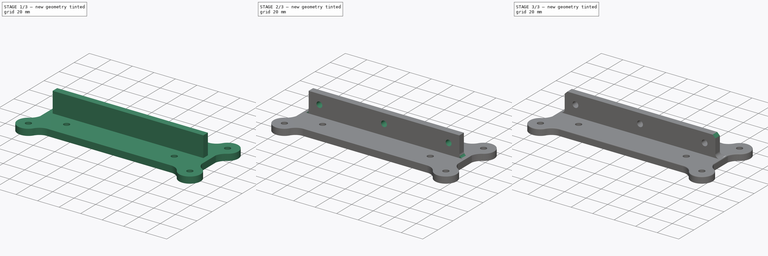
[diagram: build sequence overview — one tinted view per stage of 3, left to right]
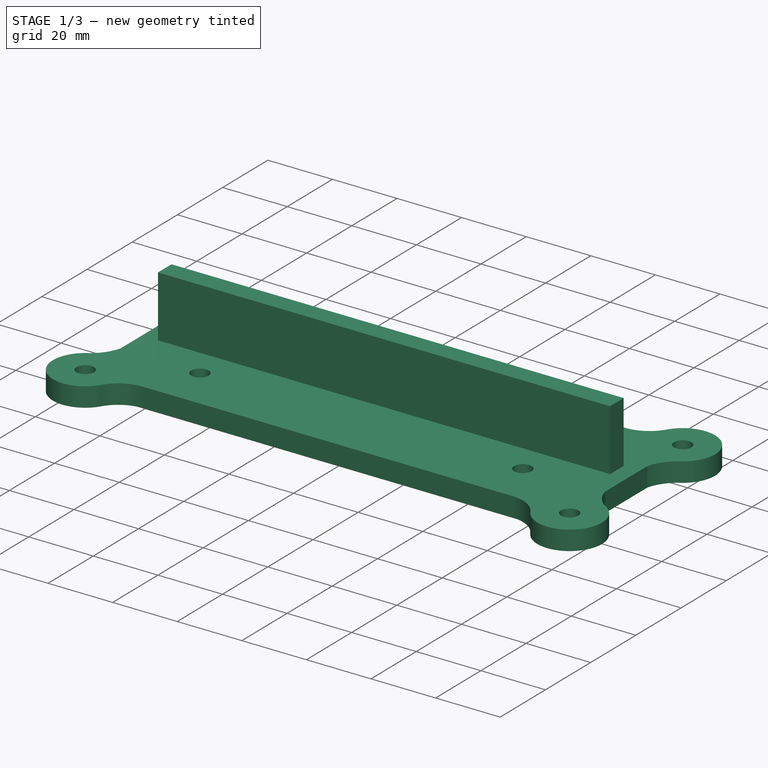
[diagram: stage 1 of 3 — iso view after this stage's code; geometry added in this stage tinted green]
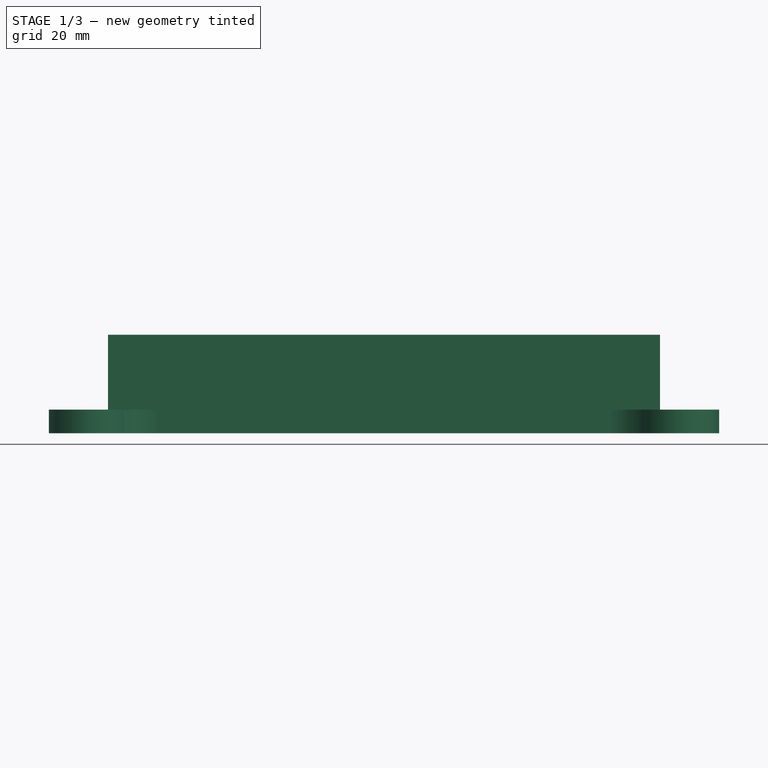
[diagram: stage 1 of 3 — front view after this stage's code; geometry added in this stage tinted green]
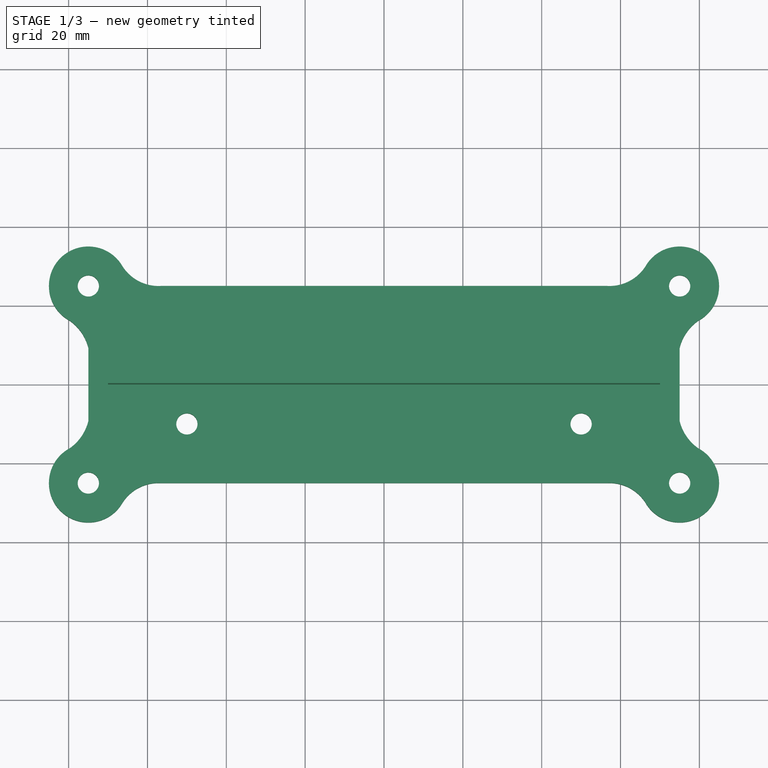
[diagram: stage 1 of 3 — top view after this stage's code; geometry added in this stage tinted green]
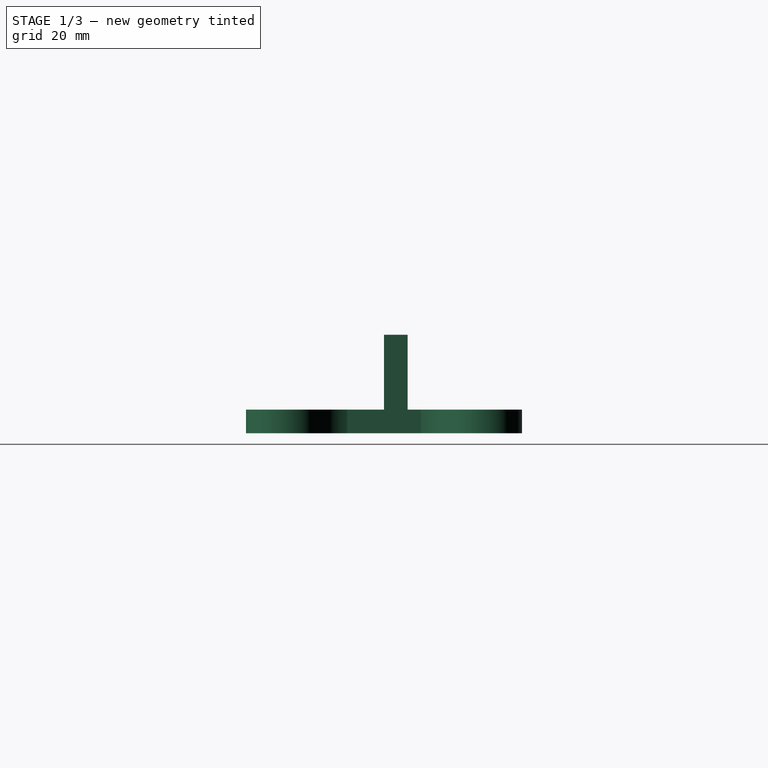
[diagram: stage 1 of 3 — right view after this stage's code; geometry added in this stage tinted green]
FCSTD DOCUMENT  (FreeCAD 0.16R6706 (Git))
Label: PSU_mount
License: All rights reserved
LicenseURL: http://en.wikipedia.org/wiki/All_rights_reserved
objects: Sketcher::SketchObject×4, Part::Fillet×3, PartDesign::Pad×2, PartDesign::Pocket×2, Part::Chamfer×1
note: 16 computed .brp shape members not serialized (recipe doc carries the construction recipe); baked Part::Feature solids carry a one-line shape summary decoded from their .brp

FEATURE [Sketcher::SketchObject] Sketch
  sketch-geometry (24):
    g0: Circle CenterX=-75 CenterY=25 CenterZ=0 NormalX=0 NormalY=0 NormalZ=1 Radius=2.7
    g1: ArcOfCircle CenterX=-75 CenterY=25 CenterZ=0 NormalX=0 NormalY=0 NormalZ=1 Radius=10 StartAngle=0.512949 EndAngle=4.22587
    g2: ArcOfCircle CenterX=-57.1845 CenterY=35.8475 CenterZ=0 NormalX=0 NormalY=0 NormalZ=1 Radius=10.8692 StartAngle=3.71977 EndAngle=4.77562
    g3: LineSegment StartX=-56.4977 StartY=25 StartZ=0 EndX=0 EndY=25 EndZ=0
    g4: ArcOfCircle CenterX=-86.6969 CenterY=6.34234 CenterZ=0 NormalX=0 NormalY=0 NormalZ=1 Radius=12.0703 StartAngle=0.2494 EndAngle=0.949976
    g5: LineSegment StartX=-75 StartY=9.32156 StartZ=0 EndX=-75 EndY=0 EndZ=0
    g6: Circle CenterX=-75 CenterY=-25 CenterZ=0 NormalX=0 NormalY=0 NormalZ=1 Radius=2.7
    g7: ArcOfCircle CenterX=-75 CenterY=-25 CenterZ=0 NormalX=0 NormalY=0 NormalZ=1 Radius=10 StartAngle=2.05732 EndAngle=5.77024
    g8: ArcOfCircle CenterX=-57.1845 CenterY=-35.8475 CenterZ=0 NormalX=0 NormalY=0 NormalZ=1 Radius=10.8692 StartAngle=1.50757 EndAngle=2.56342
    g9: LineSegment StartX=-56.4977 StartY=-25 StartZ=0 EndX=0 EndY=-25 EndZ=0
    g10: ArcOfCircle CenterX=-86.6969 CenterY=-6.34234 CenterZ=0 NormalX=0 NormalY=0 NormalZ=1 Radius=12.0703 StartAngle=5.33321 EndAngle=6.03379
    g11: LineSegment StartX=-75 StartY=-9.32156 StartZ=0 EndX=-75 EndY=0 EndZ=0
    g12: Circle CenterX=75 CenterY=25 CenterZ=0 NormalX=0 NormalY=0 NormalZ=1 Radius=2.7
    g13: ArcOfCircle CenterX=75 CenterY=25 CenterZ=0 NormalX=0 NormalY=0 NormalZ=1 Radius=10 StartAngle=5.19891 EndAngle=8.91183
    g14: ArcOfCircle CenterX=57.1845 CenterY=35.8475 CenterZ=0 NormalX=0 NormalY=0 NormalZ=1 Radius=10.8692 StartAngle=4.64916 EndAngle=5.70501
    g15: LineSegment StartX=56.4977 StartY=25 StartZ=0 EndX=0 EndY=25 EndZ=0
    g16: ArcOfCircle CenterX=86.6969 CenterY=6.34234 CenterZ=0 NormalX=0 NormalY=0 NormalZ=1 Radius=12.0703 StartAngle=2.19162 EndAngle=2.89219
    g17: LineSegment StartX=75 StartY=9.32156 StartZ=0 EndX=75 EndY=0 EndZ=0
    g18: Circle CenterX=75 CenterY=-25 CenterZ=0 NormalX=0 NormalY=0 NormalZ=1 Radius=2.7
    g19: ArcOfCircle CenterX=75 CenterY=-25 CenterZ=0 NormalX=0 NormalY=0 NormalZ=1 Radius=10 StartAngle=3.65454 EndAngle=7.36746
    g20: ArcOfCircle CenterX=57.1845 CenterY=-35.8475 CenterZ=0 NormalX=0 NormalY=0 NormalZ=1 Radius=10.8692 StartAngle=0.578175 EndAngle=1.63403
    g21: LineSegment StartX=56.4977 StartY=-25 StartZ=0 EndX=0 EndY=-25 EndZ=0
    g22: ArcOfCircle CenterX=86.6969 CenterY=-6.34234 CenterZ=0 NormalX=0 NormalY=0 NormalZ=1 Radius=12.0703 StartAngle=3.39099 EndAngle=4.09157
    g23: LineSegment StartX=75 StartY=-9.32156 StartZ=0 EndX=75 EndY=0 EndZ=0
  constraints (42):
    c: DistanceX(g0,g-1) = 75
    c: DistanceY(g-1,g0) = 25
    c: Radius(g0) = 2.7
    c: Coincident(g1,g0)
    c: Coincident(g2,g1)
    c: Coincident(g3,g2)
    c: PointOnObject(g3,g-2)
    c: Horizontal(g3)
    c: Coincident(g4,g1)
    c: Coincident(g5,g4)
    c: PointOnObject(g5,g-1)
    c: Vertical(g5)
    c: DistanceY(g-1,g3) = 25
    c: DistanceX(g5,g-1) = 75
    c: Radius(g1) = 10
    c: Radius(g6) = 2.7
    c: Coincident(g7,g6)
    c: Coincident(g8,g7)
    c: Coincident(g9,g8)
    c: Horizontal(g9)
    c: Coincident(g10,g7)
    c: Coincident(g11,g10)
    c: Vertical(g11)
    c: Radius(g7) = 10
    c: Radius(g12) = 2.7
    c: Coincident(g13,g12)
    c: Coincident(g14,g13)
    c: Coincident(g15,g14)
    c: Horizontal(g15)
    c: Coincident(g16,g13)
    c: Coincident(g17,g16)
    c: Vertical(g17)
    c: Radius(g13) = 10
    c: Radius(g18) = 2.7
    c: Coincident(g19,g18)
    c: Coincident(g20,g19)
    c: Coincident(g21,g20)
    c: Horizontal(g21)
    c: Coincident(g22,g19)
    c: Coincident(g23,g22)
    c: Vertical(g23)
    c: Radius(g19) = 10
FEATURE [PartDesign::Pad] Pad
  Length = 6
  Length2 = 100
  Sketch = -> Sketch
  Type = 0
FEATURE [Sketcher::SketchObject] Sketch001
  ExternalGeometry = -> [Pad]
  Placement = pos=(0,0,6) rot=(0,0,1;0rad)
  Support = -> Pad [Face26]
  sketch-geometry (2):
    g0: Circle CenterX=-50 CenterY=-10 CenterZ=0 NormalX=0 NormalY=0 NormalZ=1 Radius=2.7
    g1: Circle CenterX=50 CenterY=-10 CenterZ=0 NormalX=0 NormalY=0 NormalZ=1 Radius=2.7
  constraints (5):
    c: DistanceY(g-3,g0) = 15
    c: DistanceX(g0,g-1) = 50
    c: Radius(g0) = 2.7
    c: Symmetric(g0,g1,g-2)
    c: Equal(g0,g1)
FEATURE [PartDesign::Pocket] Pocket
  Length = 6
  Sketch = -> Sketch001
  Type = 1
FEATURE [Sketcher::SketchObject] Sketch002
  ExternalGeometry = -> [Pocket]
  Placement = pos=(0,0,6) rot=(0,0,1;0rad)
  Support = -> Pocket [Face5]
  sketch-geometry (4):
    g0: LineSegment StartX=-70 StartY=6 StartZ=0 EndX=70 EndY=6 EndZ=0
    g1: LineSegment StartX=70 StartY=6 StartZ=0 EndX=70 EndY=0 EndZ=0
    g2: LineSegment StartX=70 StartY=0 StartZ=0 EndX=-70 EndY=0 EndZ=0
    g3: LineSegment StartX=-70 StartY=0 StartZ=0 EndX=-70 EndY=6 EndZ=0
  constraints (12):
    c: Coincident(g0,g1)
    c: Coincident(g1,g2)
    c: Coincident(g2,g3)
    c: Coincident(g3,g0)
    c: Horizontal(g0)
    c: Horizontal(g2)
    c: Vertical(g1)
    c: Vertical(g3)
    c: Symmetric(g0,g0,g-2)
    c: DistanceX(g0,g0) = 140
    c: DistanceY(g1,g1) = 6
    c: DistanceY(g-3,g1) = 25
FEATURE [PartDesign::Pad] Pad001
  Length = 19
  Length2 = 100
  Sketch = -> Sketch002
  Type = 0
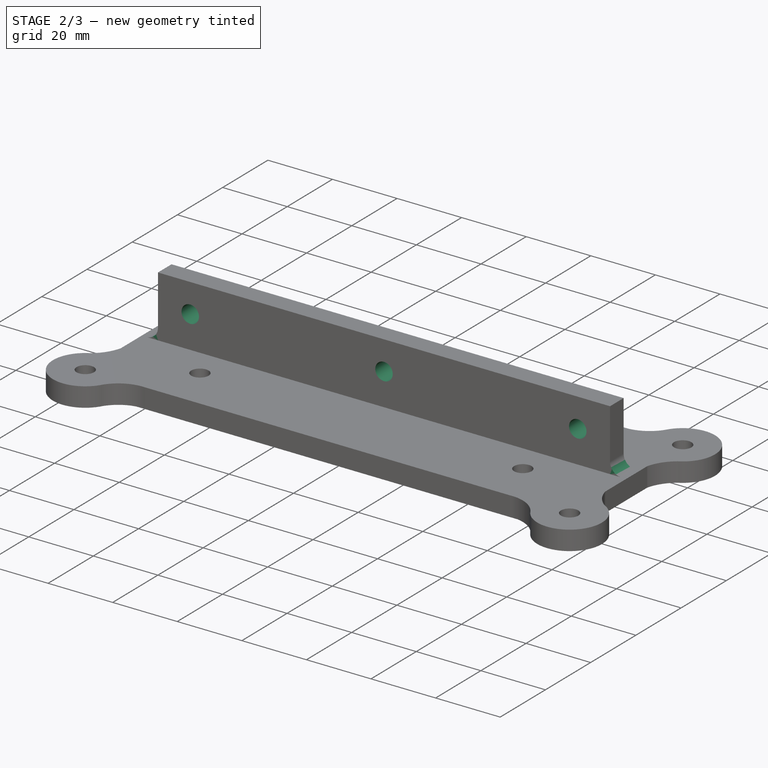
[diagram: stage 2 of 3 — iso view after this stage's code; geometry added in this stage tinted green]
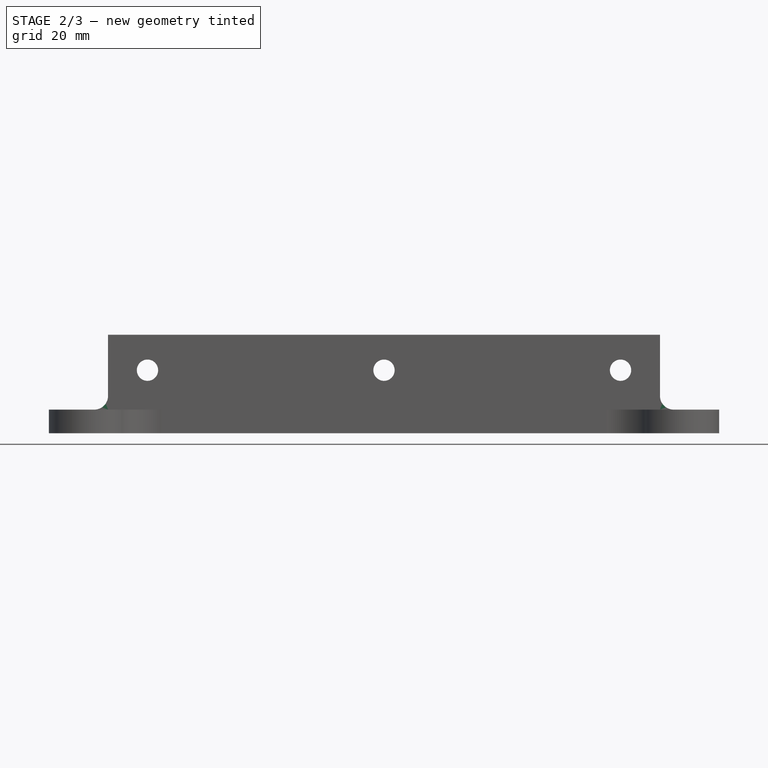
[diagram: stage 2 of 3 — front view after this stage's code; geometry added in this stage tinted green]
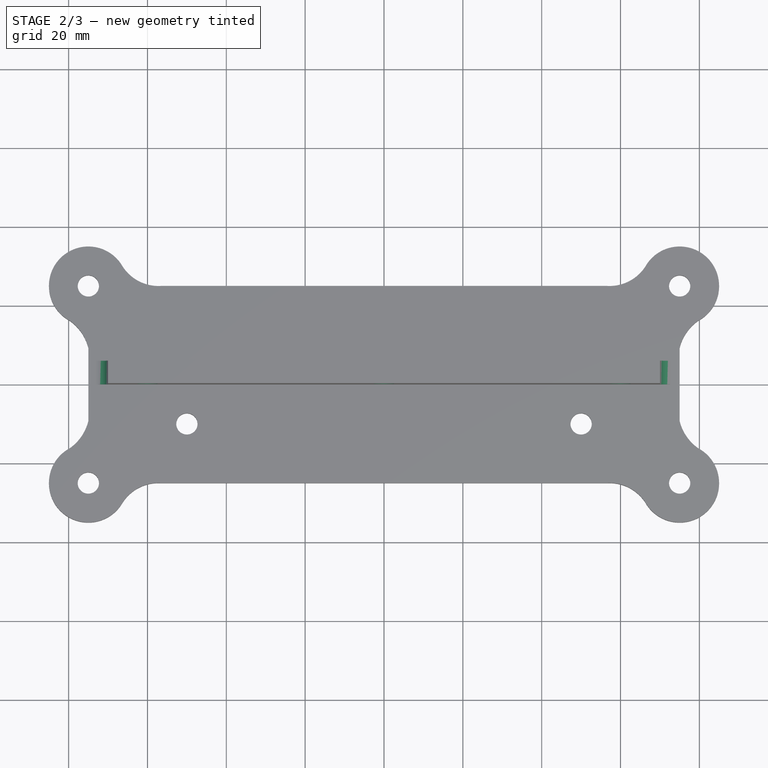
[diagram: stage 2 of 3 — top view after this stage's code; geometry added in this stage tinted green]
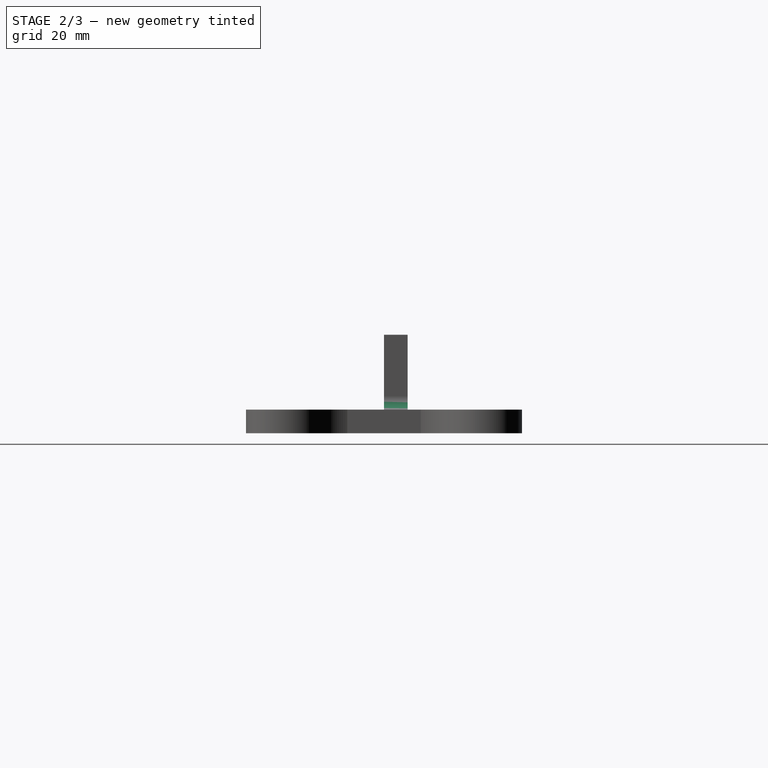
[diagram: stage 2 of 3 — right view after this stage's code; geometry added in this stage tinted green]
FEATURE [Sketcher::SketchObject] Sketch003
  ExternalGeometry = -> [Pad001]
  Placement = pos=(0,0,0) rot=(1,0,0;1.5708rad)
  Support = -> Pad001 [Face30]
  sketch-geometry (3):
    g0: Circle CenterX=-60 CenterY=16 CenterZ=0 NormalX=0 NormalY=0 NormalZ=1 Radius=2.7
    g1: Circle CenterX=0 CenterY=16 CenterZ=0 NormalX=0 NormalY=0 NormalZ=1 Radius=2.7
    g2: Circle CenterX=60 CenterY=16 CenterZ=0 NormalX=0 NormalY=0 NormalZ=1 Radius=2.7
  constraints (8):
    c: Radius(g0) = 2.7
    c: PointOnObject(g1,g-2)
    c: DistanceY(g-3,g0) = 10
    c: Equal(g0,g2)
    c: Symmetric(g0,g2,g-2)
    c: Equal(g0,g1)
    c: DistanceX(g0,g-1) = 60
    c: DistanceY(g-3,g1) = 10
FEATURE [PartDesign::Pocket] Pocket001
  Length = 5
  Sketch = -> Sketch003
  Type = 1
FEATURE [Part::Fillet] Fillet
  Base = -> Pocket001
  Edges = 2 edges r=3.5: [Edge51,Edge53]
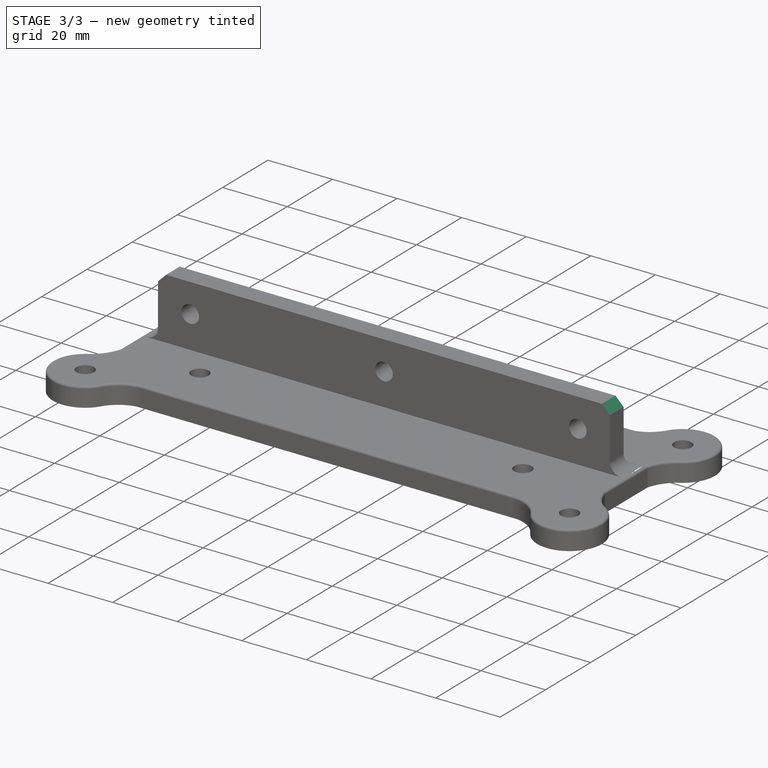
[diagram: stage 3 of 3 — iso view after this stage's code; geometry added in this stage tinted green]
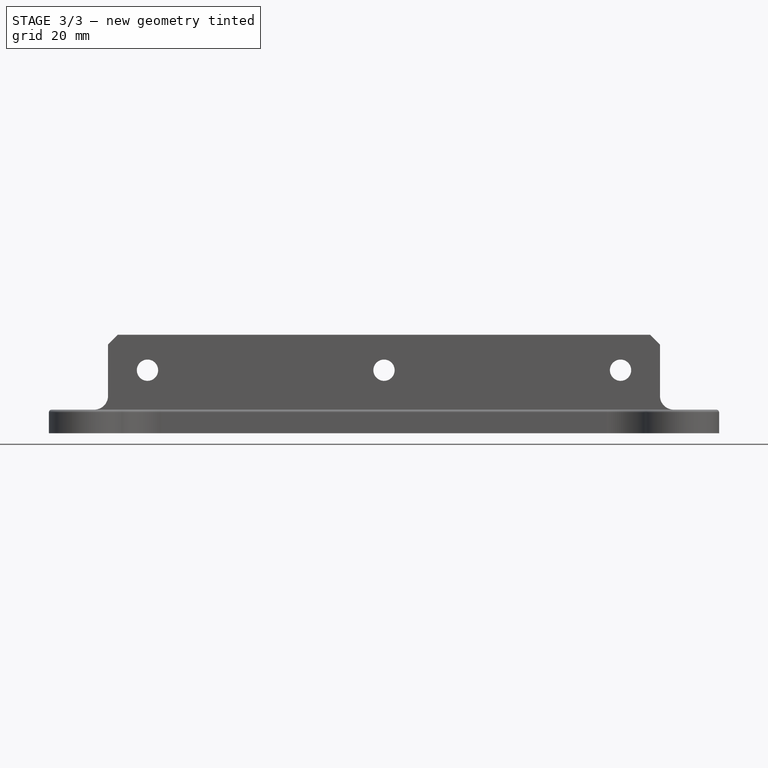
[diagram: stage 3 of 3 — front view after this stage's code; geometry added in this stage tinted green]
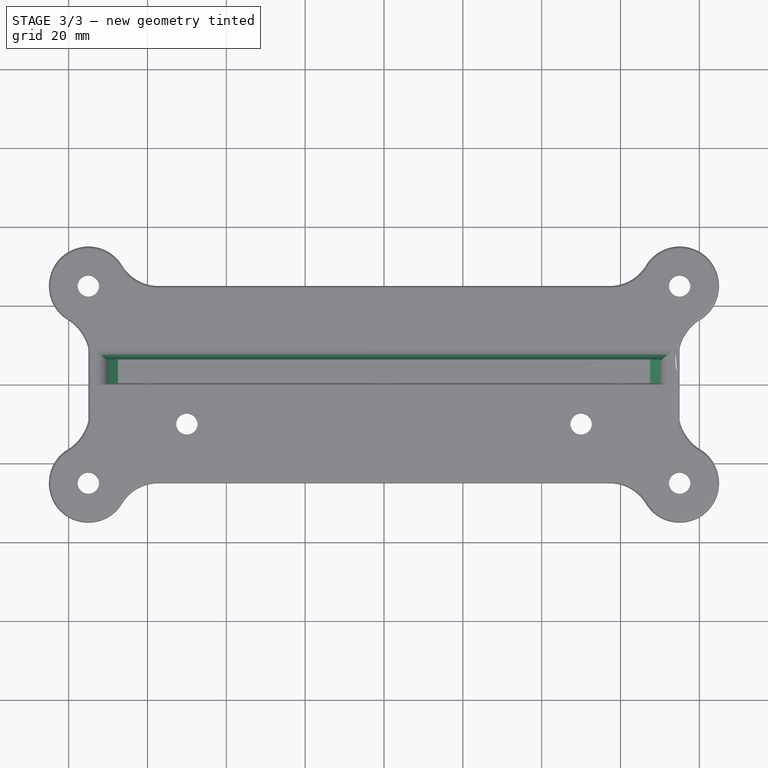
[diagram: stage 3 of 3 — top view after this stage's code; geometry added in this stage tinted green]
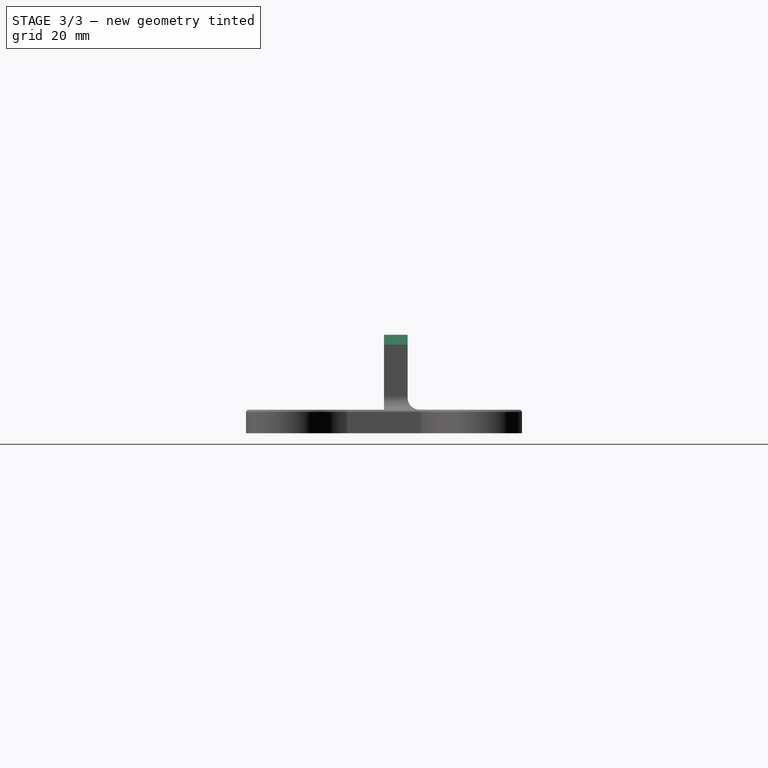
[diagram: stage 3 of 3 — right view after this stage's code; geometry added in this stage tinted green]
FEATURE [Part::Chamfer] Chamfer
  Base = -> Fillet
  Edges = 2 edges r=2.5: [Edge105,Edge106]
FEATURE [Part::Fillet] Fillet001
  Base = -> Chamfer
  Edges = 20 edges r=0.7: [Edge27,Edge28,Edge29,Edge30,Edge31,Edge32,Edge33,Edge34,Edge35,Edge36,Edge37,Edge38,Edge39,Edge40,Edge41,Edge42,Edge43,Edge44,Edge45,Edge46]
FEATURE [Part::Fillet] Fillet002
  Base = -> Fillet001
  Edges = 1 edges r=3: [Edge31]
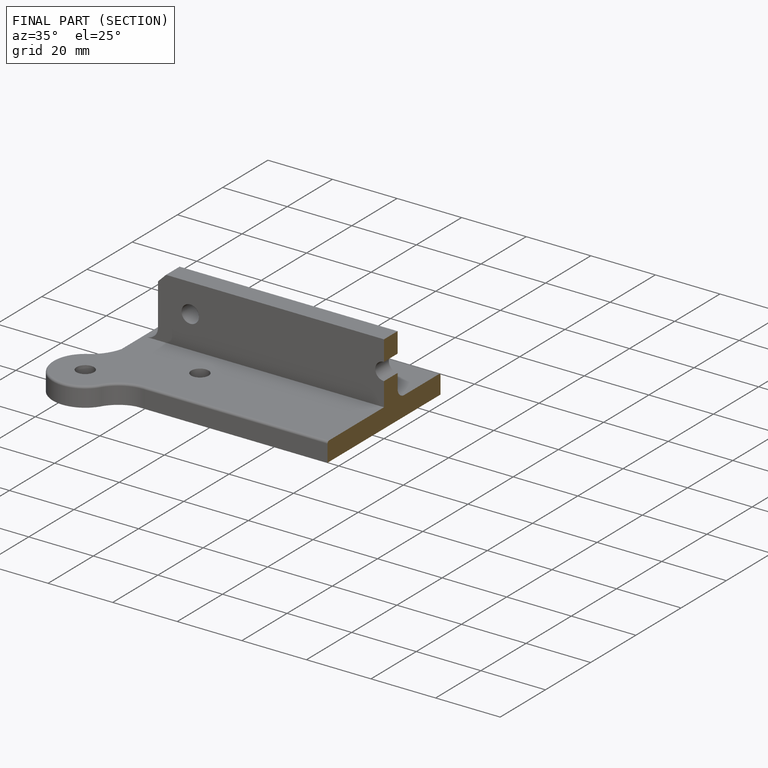
[diagram: finished part — half-section view (interior)]
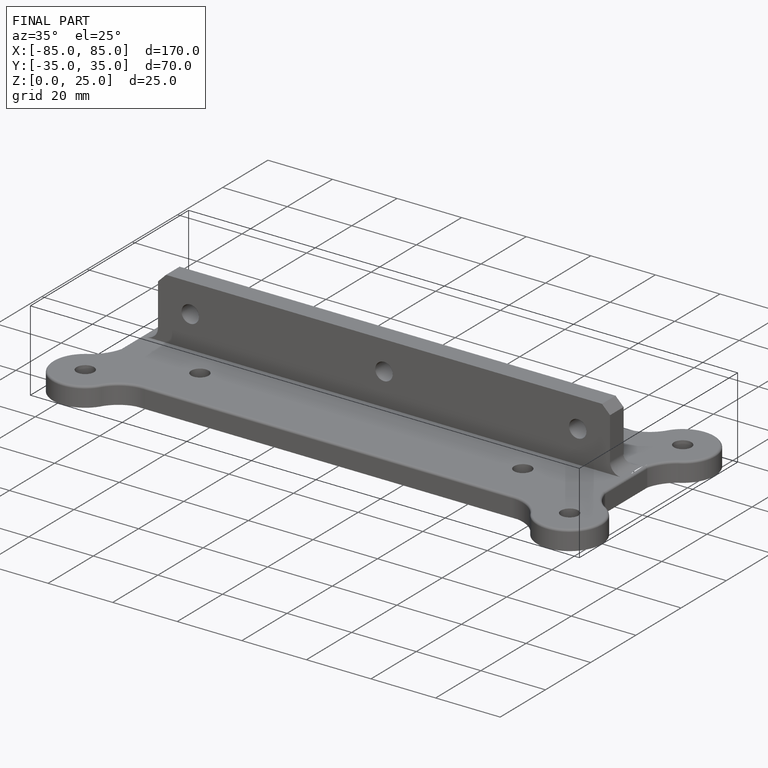
[diagram: finished part — iso view with bounding-box wireframe]
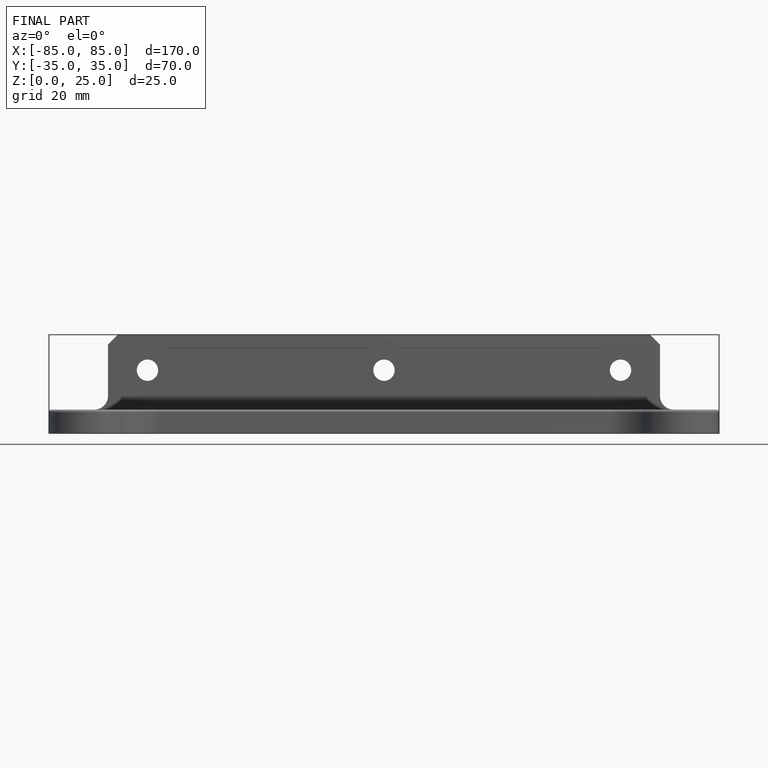
[diagram: finished part — front view with bounding-box wireframe]
